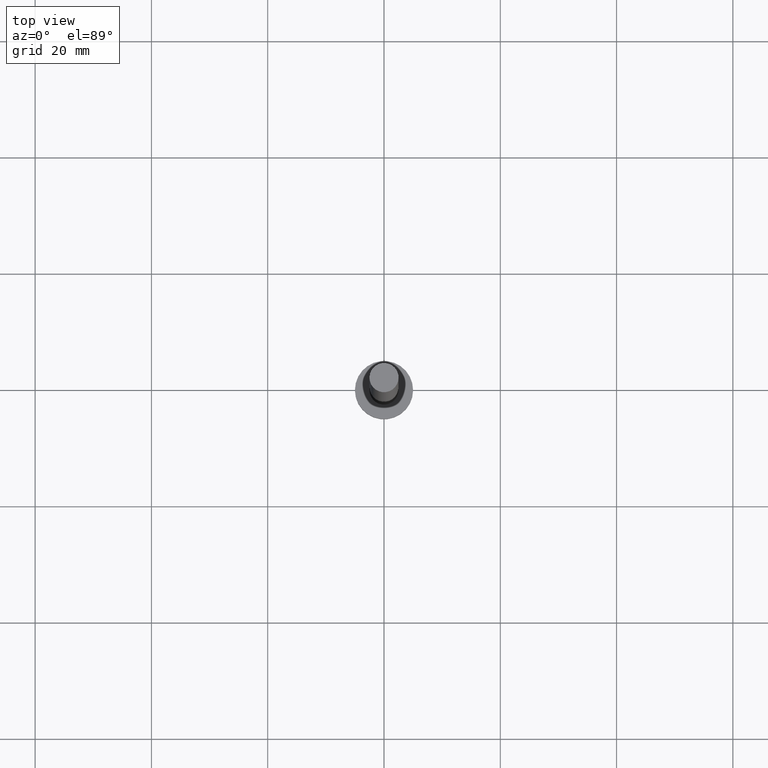
[diagram: clean part render]
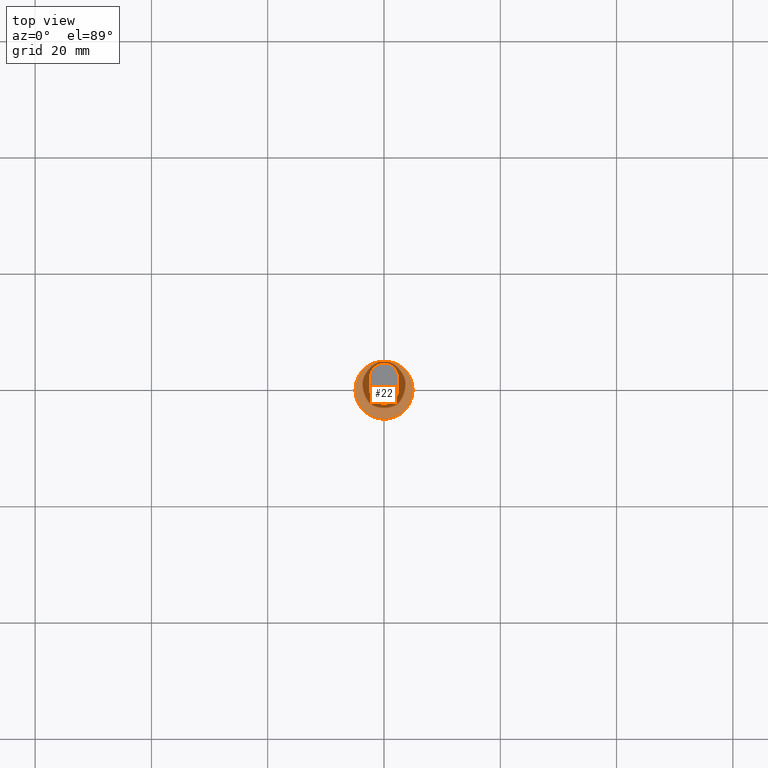
[diagram: same view with one face highlighted and labeled with its STEP entity id]
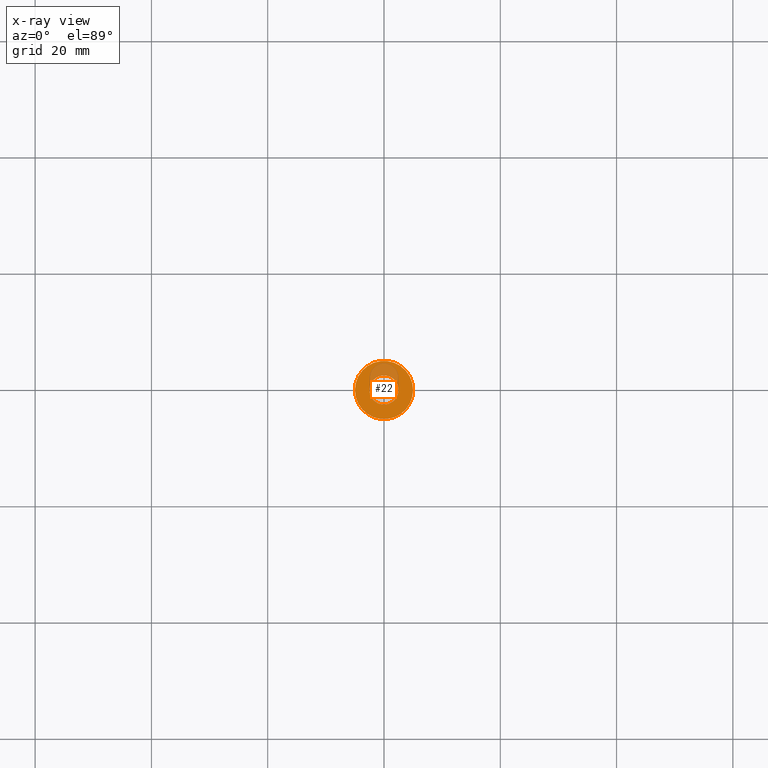
[diagram: x-ray of the same camera — body ghosted, the highlighted face saturated]
A machine part, top view. The second image highlights one B-rep face of the part: STEP entity #22.
The next image is the same camera in x-ray: the body ghosted, the highlighted face saturated — about 18% of this face is hidden behind the body in this view.
In plain terms, the highlighted planar face has unit normal (0, 0, 1).
Its self-contained STEP definition (entity closure, byte-faithful):
#6 = CARTESIAN_POINT ( 'NONE',  ( 0.000000000000000000, 0.000000000000000000, 3.000000000000000000 ) ) ;
#8 = DIRECTION ( 'NONE',  ( 0.000000000000000000, 0.000000000000000000, 1.000000000000000000 ) ) ;
#10 = DIRECTION ( 'NONE',  ( 1.000000000000000000, 0.000000000000000000, 0.000000000000000000 ) ) ;
#13 = EDGE_LOOP ( 'NONE', ( #78, #92 ) ) ;
#17 = CIRCLE ( 'NONE', #250, 5.000000000000000000 ) ;
#20 = DIRECTION ( 'NONE',  ( 1.000000000000000000, 0.000000000000000000, 0.000000000000000000 ) ) ;
#21 = CARTESIAN_POINT ( 'NONE',  ( 5.000000000000000000, 6.123233995736766282E-16, 3.000000000000000000 ) ) ;
#22 = ADVANCED_FACE ( 'NONE', ( #90, #168 ), #69, .T. ) ;
#25 = AXIS2_PLACEMENT_3D ( 'NONE', #6, #76, #20 ) ;
#31 = CIRCLE ( 'NONE', #219, 2.500000000000000000 ) ;
#35 = CIRCLE ( 'NONE', #25, 2.500000000000000000 ) ;
#45 = DIRECTION ( 'NONE',  ( 1.000000000000000000, 0.000000000000000000, 0.000000000000000000 ) ) ;
#52 = DIRECTION ( 'NONE',  ( 1.000000000000000000, 0.000000000000000000, -0.000000000000000000 ) ) ;
#66 = CARTESIAN_POINT ( 'NONE',  ( -5.000000000000000000, 0.000000000000000000, 3.000000000000000000 ) ) ;
#67 = ORIENTED_EDGE ( 'NONE', *, *, #184, .T. ) ;
#69 = PLANE ( 'NONE',  #191 ) ;
#76 = DIRECTION ( 'NONE',  ( 0.000000000000000000, 0.000000000000000000, 1.000000000000000000 ) ) ;
#77 = EDGE_CURVE ( 'NONE', #232, #177, #17, .T. ) ;
#78 = ORIENTED_EDGE ( 'NONE', *, *, #254, .F. ) ;
#90 = FACE_BOUND ( 'NONE', #13, .T. ) ;
#92 = ORIENTED_EDGE ( 'NONE', *, *, #134, .F. ) ;
#100 = CARTESIAN_POINT ( 'NONE',  ( 0.000000000000000000, 0.000000000000000000, 3.000000000000000000 ) ) ;
#104 = CARTESIAN_POINT ( 'NONE',  ( 0.000000000000000000, 0.000000000000000000, 3.000000000000000000 ) ) ;
#109 = VERTEX_POINT ( 'NONE', #120 ) ;
#120 = CARTESIAN_POINT ( 'NONE',  ( -2.500000000000000000, 0.000000000000000000, 3.000000000000000000 ) ) ;
#134 = EDGE_CURVE ( 'NONE', #135, #109, #35, .T. ) ;
#135 = VERTEX_POINT ( 'NONE', #160 ) ;
#152 = CARTESIAN_POINT ( 'NONE',  ( 0.000000000000000000, 0.000000000000000000, 3.000000000000000000 ) ) ;
#155 = ORIENTED_EDGE ( 'NONE', *, *, #77, .T. ) ;
#160 = CARTESIAN_POINT ( 'NONE',  ( 2.500000000000000000, 3.061616997868382648E-16, 3.000000000000000000 ) ) ;
#168 = FACE_OUTER_BOUND ( 'NONE', #173, .T. ) ;
#173 = EDGE_LOOP ( 'NONE', ( #155, #67 ) ) ;
#177 = VERTEX_POINT ( 'NONE', #21 ) ;
#181 = CARTESIAN_POINT ( 'NONE',  ( 0.000000000000000000, 0.000000000000000000, 3.000000000000000000 ) ) ;
#184 = EDGE_CURVE ( 'NONE', #177, #232, #205, .T. ) ;
#185 = DIRECTION ( 'NONE',  ( 0.000000000000000000, 0.000000000000000000, 1.000000000000000000 ) ) ;
#186 = DIRECTION ( 'NONE',  ( 0.000000000000000000, 0.000000000000000000, 1.000000000000000000 ) ) ;
#191 = AXIS2_PLACEMENT_3D ( 'NONE', #152, #230, #52 ) ;
#205 = CIRCLE ( 'NONE', #244, 5.000000000000000000 ) ;
#218 = DIRECTION ( 'NONE',  ( 1.000000000000000000, 0.000000000000000000, 0.000000000000000000 ) ) ;
#219 = AXIS2_PLACEMENT_3D ( 'NONE', #104, #186, #10 ) ;
#230 = DIRECTION ( 'NONE',  ( 0.000000000000000000, 0.000000000000000000, 1.000000000000000000 ) ) ;
#232 = VERTEX_POINT ( 'NONE', #66 ) ;
#244 = AXIS2_PLACEMENT_3D ( 'NONE', #100, #185, #45 ) ;
#250 = AXIS2_PLACEMENT_3D ( 'NONE', #181, #8, #218 ) ;
#254 = EDGE_CURVE ( 'NONE', #109, #135, #31, .T. ) ;